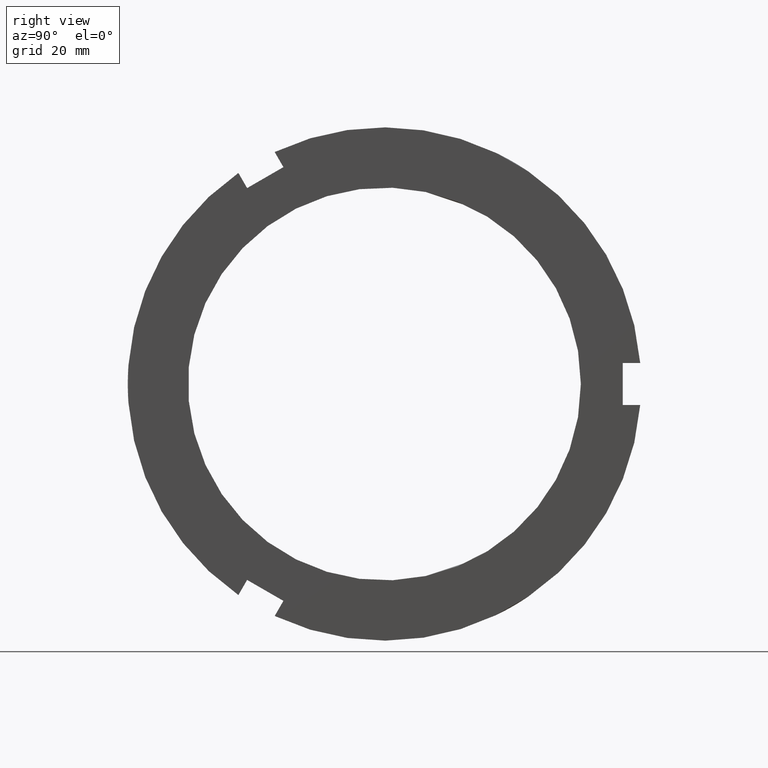
[diagram: clean part render]
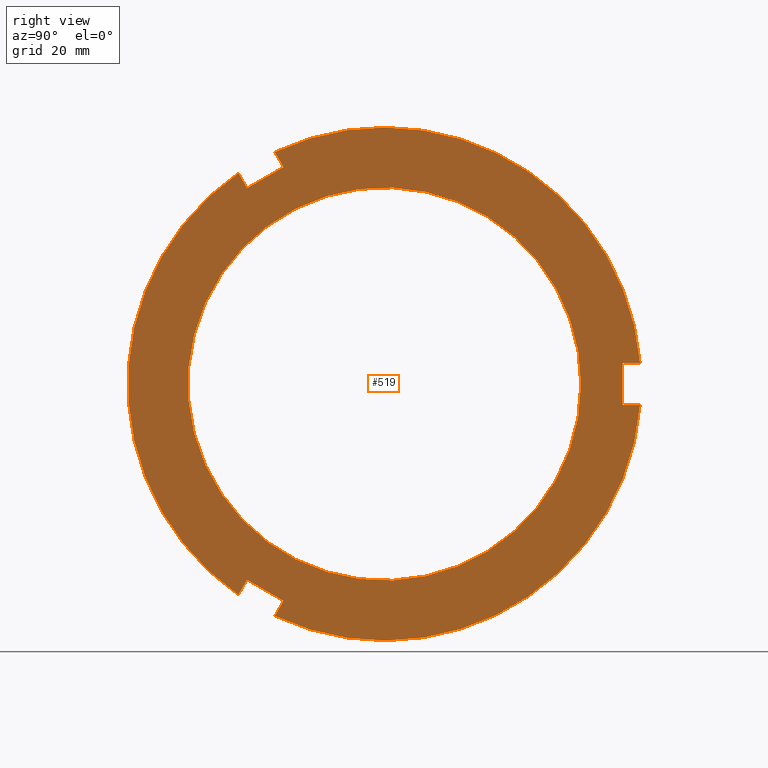
[diagram: same view with one face highlighted and labeled with its STEP entity id]
A machine part, right view. The second image highlights one B-rep face of the part: STEP entity #519.
In plain terms, the highlighted planar face has unit normal (1, 0, 0).
Its self-contained STEP definition (entity closure, byte-faithful):
#83=CARTESIAN_POINT('',(17.999999999999989,-26.214101615137775,-37.404155872191957));
#84=VERTEX_POINT('',#83);
#91=CARTESIAN_POINT('',(17.999999999999989,-27.882332509287338,-40.293616539615051));
#92=VERTEX_POINT('',#91);
#93=CARTESIAN_POINT('',(17.999999999999989,-27.882332509287345,-40.293616539615059));
#94=DIRECTION('',(0.0,0.500000000000001,0.866025403784438));
#95=VECTOR('',#94,3.336461788299120);
#96=LINE('',#93,#95);
#97=EDGE_CURVE('',#92,#84,#96,.T.);
#123=CARTESIAN_POINT('',(17.999999999999989,-20.954129279011831,-44.293616539615044));
#124=VERTEX_POINT('',#123);
#131=CARTESIAN_POINT('',(17.999999999999989,-19.285898384862271,-41.404155872191957));
#132=VERTEX_POINT('',#131);
#133=CARTESIAN_POINT('',(17.999999999999989,-19.285898384862275,-41.404155872191964));
#134=DIRECTION('',(0.0,-0.500000000000000,-0.866025403784439));
#135=VECTOR('',#134,3.336461788299118);
#136=LINE('',#133,#135);
#137=EDGE_CURVE('',#132,#124,#136,.T.);
#160=CARTESIAN_POINT('',(17.999999999999989,-26.214101615137785,-37.404155872191957));
#161=DIRECTION('',(0.0,0.866025403784438,-0.500000000000001));
#162=VECTOR('',#161,8.000000000000002);
#163=LINE('',#160,#162);
#164=EDGE_CURVE('',#84,#132,#163,.T.);
#273=CARTESIAN_POINT('',(17.999999999999989,-19.285898384862243,41.404155872191964));
#274=VERTEX_POINT('',#273);
#281=CARTESIAN_POINT('',(17.999999999999989,-20.954129279011799,44.293616539615066));
#282=VERTEX_POINT('',#281);
#283=CARTESIAN_POINT('',(17.999999999999989,-20.954129279011806,44.293616539615073));
#284=DIRECTION('',(0.0,0.500000000000000,-0.866025403784439));
#285=VECTOR('',#284,3.336461788299126);
#286=LINE('',#283,#285);
#287=EDGE_CURVE('',#282,#274,#286,.T.);
#313=CARTESIAN_POINT('',(17.999999999999989,-27.882332509287306,40.293616539615059));
#314=VERTEX_POINT('',#313);
#321=CARTESIAN_POINT('',(17.999999999999989,-26.214101615137750,37.404155872191971));
#322=VERTEX_POINT('',#321);
#323=CARTESIAN_POINT('',(17.999999999999989,-26.214101615137757,37.404155872191978));
#324=DIRECTION('',(0.0,-0.500000000000000,0.866025403784438));
#325=VECTOR('',#324,3.336461788299111);
#326=LINE('',#323,#325);
#327=EDGE_CURVE('',#322,#314,#326,.T.);
#350=CARTESIAN_POINT('',(17.999999999999989,-19.285898384862250,41.404155872191978));
#351=DIRECTION('',(0.0,-0.866025403784438,-0.500000000000000));
#352=VECTOR('',#351,7.999999999999995);
#353=LINE('',#350,#352);
#354=EDGE_CURVE('',#274,#322,#353,.T.);
#448=CARTESIAN_POINT('',(17.999999999999989,43.250000000000000,0.0));
#449=DIRECTION('',(1.0,0.0,0.0));
#450=DIRECTION('',(0.0,0.0,-1.0));
#451=AXIS2_PLACEMENT_3D('',#448,#449,#450);
#452=PLANE('',#451);
#453=ORIENTED_EDGE('',*,*,#97,.T.);
#454=ORIENTED_EDGE('',*,*,#164,.T.);
#455=ORIENTED_EDGE('',*,*,#137,.T.);
#456=CARTESIAN_POINT('',(17.999999999999989,48.836461788299125,-3.999999999999998));
#457=VERTEX_POINT('',#456);
#458=CARTESIAN_POINT('',(17.999999999999989,0.0,0.0));
#459=DIRECTION('',(1.0,0.0,0.0));
#460=DIRECTION('',(0.0,1.0,0.0));
#461=AXIS2_PLACEMENT_3D('',#458,#459,#460);
#462=CIRCLE('',#461,49.0);
#463=EDGE_CURVE('',#124,#457,#462,.T.);
#464=ORIENTED_EDGE('',*,*,#463,.T.);
#465=CARTESIAN_POINT('',(17.999999999999989,45.500000000000007,-3.999999999999998));
#466=VERTEX_POINT('',#465);
#467=CARTESIAN_POINT('',(17.999999999999989,48.836461788299125,-3.999999999999998));
#468=DIRECTION('',(0.0,-1.0,0.0));
#469=VECTOR('',#468,3.336461788299118);
#470=LINE('',#467,#469);
#471=EDGE_CURVE('',#457,#466,#470,.T.);
#472=ORIENTED_EDGE('',*,*,#471,.T.);
#473=CARTESIAN_POINT('',(17.999999999999989,45.500000000000007,3.999999999999998));
#474=VERTEX_POINT('',#473);
#475=CARTESIAN_POINT('',(17.999999999999989,45.500000000000007,-3.999999999999997));
#476=DIRECTION('',(0.0,0.0,1.0));
#477=VECTOR('',#476,7.999999999999996);
#478=LINE('',#475,#477);
#479=EDGE_CURVE('',#466,#474,#478,.T.);
#480=ORIENTED_EDGE('',*,*,#479,.T.);
#481=CARTESIAN_POINT('',(17.999999999999989,48.836461788299125,3.999999999999998));
#482=VERTEX_POINT('',#481);
#483=CARTESIAN_POINT('',(17.999999999999989,45.500000000000007,3.999999999999998));
#484=DIRECTION('',(0.0,1.0,0.0));
#485=VECTOR('',#484,3.336461788299118);
#486=LINE('',#483,#485);
#487=EDGE_CURVE('',#474,#482,#486,.T.);
#488=ORIENTED_EDGE('',*,*,#487,.T.);
#489=CARTESIAN_POINT('',(17.999999999999989,0.0,0.0));
#490=DIRECTION('',(1.0,0.0,0.0));
#491=DIRECTION('',(0.0,1.0,0.0));
#492=AXIS2_PLACEMENT_3D('',#489,#490,#491);
#493=CIRCLE('',#492,49.0);
#494=EDGE_CURVE('',#482,#282,#493,.T.);
#495=ORIENTED_EDGE('',*,*,#494,.T.);
#496=ORIENTED_EDGE('',*,*,#287,.T.);
#497=ORIENTED_EDGE('',*,*,#354,.T.);
#498=ORIENTED_EDGE('',*,*,#327,.T.);
#499=CARTESIAN_POINT('',(17.999999999999989,0.0,0.0));
#500=DIRECTION('',(1.0,0.0,0.0));
#501=DIRECTION('',(0.0,1.0,0.0));
#502=AXIS2_PLACEMENT_3D('',#499,#500,#501);
#503=CIRCLE('',#502,49.0);
#504=EDGE_CURVE('',#314,#92,#503,.T.);
#505=ORIENTED_EDGE('',*,*,#504,.T.);
#506=EDGE_LOOP('',(#453,#454,#455,#464,#472,#480,#488,#495,#496,#497,#498,#505));
#507=FACE_OUTER_BOUND('',#506,.T.);
#508=CARTESIAN_POINT('',(17.999999999999993,37.500000000000000,0.0));
#509=VERTEX_POINT('',#508);
#510=CARTESIAN_POINT('',(17.999999999999993,0.0,0.0));
#511=DIRECTION('',(1.0,0.0,0.0));
#512=DIRECTION('',(0.0,1.0,0.0));
#513=AXIS2_PLACEMENT_3D('',#510,#511,#512);
#514=CIRCLE('',#513,37.500000000000000);
#515=EDGE_CURVE('',#509,#509,#514,.T.);
#516=ORIENTED_EDGE('',*,*,#515,.F.);
#517=EDGE_LOOP('',(#516));
#518=FACE_BOUND('',#517,.T.);
#519=ADVANCED_FACE('',(#507,#518),#452,.T.);